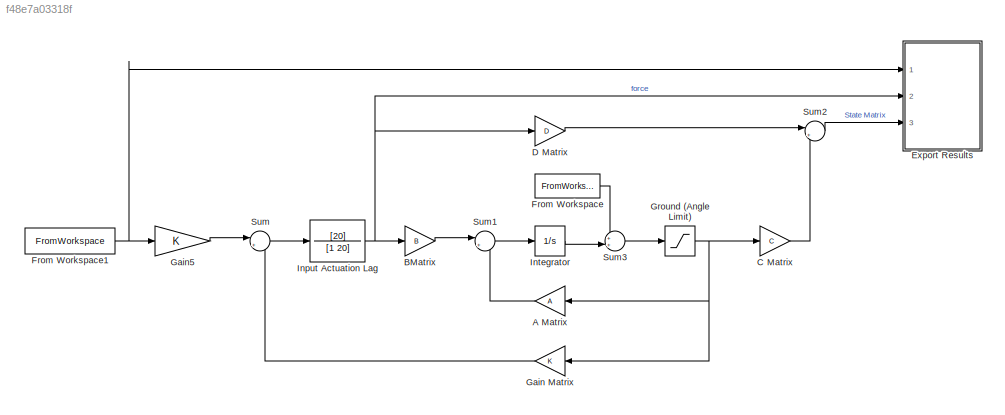
MODEL slx_f48e7a03318f
KIND model
CONFIG AbsTol = auto
CONFIG EnableMultiTasking = off
CONFIG FixedStep = .05
CONFIG MaxStep = auto
CONFIG MinStep = auto
CONFIG RelTol = 1e-3
CONFIG SampleTimeConstraint = Unconstrained
CONFIG SolverName = ode4
CONFIG StartTime = 0.0
CONFIG StopTime = 10
BLOCK [Gain] A Matrix
  Gain = A
  Multiplication = Matrix(K*u)
BLOCK [Gain] BMatrix
  Gain = B
  Multiplication = Matrix(K*u)
BLOCK [Gain] C Matrix
  Gain = C
  Multiplication = Matrix(K*u)
BLOCK [Gain] D Matrix
  Gain = D
  Multiplication = Matrix(K*u)
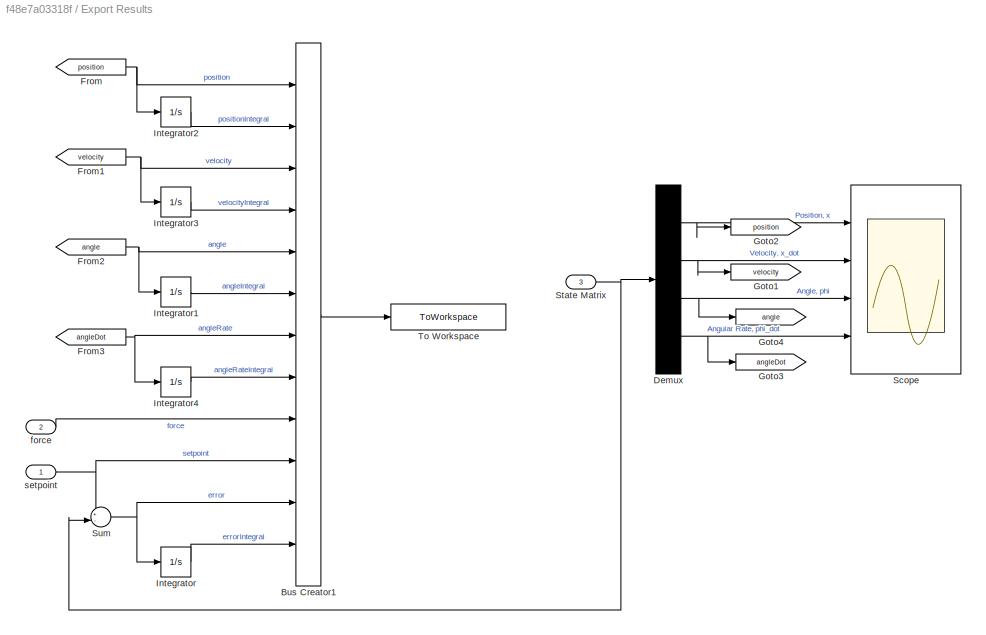
BLOCK [SubSystem] Export Results
  Ports = [3]
  RequestExecContextInheritance = off
BLOCK [BusCreator] Export Results/Bus Creator1
  DisplayOption = bar
  InheritFromInputs = on
  Inputs = 12
  Ports = [12, 1]
BLOCK [Demux] Export Results/Demux
  Ports = [1, 4]
BLOCK [From] Export Results/From
  GotoTag = position
BLOCK [From] Export Results/From1
  GotoTag = velocity
BLOCK [From] Export Results/From2
  GotoTag = angle
BLOCK [From] Export Results/From3
  GotoTag = angleDot
BLOCK [Goto] Export Results/Goto1
  GotoTag = velocity
BLOCK [Goto] Export Results/Goto2
  GotoTag = position
BLOCK [Goto] Export Results/Goto3
  GotoTag = angleDot
BLOCK [Goto] Export Results/Goto4
  GotoTag = angle
BLOCK [Integrator] Export Results/Integrator
  Ports = [1, 1]
BLOCK [Integrator] Export Results/Integrator1
  Ports = [1, 1]
BLOCK [Integrator] Export Results/Integrator2
  Ports = [1, 1]
BLOCK [Integrator] Export Results/Integrator3
  Ports = [1, 1]
BLOCK [Integrator] Export Results/Integrator4
  Ports = [1, 1]
BLOCK [Scope] Export Results/Scope
  Floating = off
  NumInputPorts = 4
  Ports = [4]
  ScopeSpecificationString = Simulink.scopes.TimeScopeBlockCfg('CurrentConfiguration', extmgr.ConfigurationSet(extmgr.Configuration('Core','General UI',true),extmgr.Configuration('Core','Source UI',true),extmgr.Configuration('Sources','WiredSimulink',true),extmgr.Configuration('Visuals','Time Domain',true,'SerializedDisplays',{struct('MinYLimReal','-0.33126','MaxYLimReal','2.78684','YLabelReal','','MinYLimMag','0.00000','MaxY...<+1411ch>
BLOCK [Inport] Export Results/State Matrix
  Port = 3
BLOCK [Sum] Export Results/Sum
  Inputs = +-|
  Ports = [2, 1]
BLOCK [ToWorkspace] Export Results/To Workspace
  FixptAsFi = on
  MaxDataPoints = inf
  Ports = [1]
  SampleTime = -1
  SaveFormat = Timeseries
  VariableName = results
BLOCK [Inport] Export Results/force
  Port = 2
BLOCK [Inport] Export Results/setpoint
BLOCK [FromWorkspace] From Workspace
  VariableName = disturbanceData
BLOCK [FromWorkspace] From Workspace1
  VariableName = systemSetpoints
BLOCK [Gain] Gain Matrix
  Gain = K
  Multiplication = Matrix(K*u)
BLOCK [Gain] Gain5
  Gain = K
  Multiplication = Matrix(K*u)
BLOCK [Saturate] Ground (Angle Limit)
  LowerLimit = -[10^6 10^6 thetaMax 10^6]
  UpperLimit = [10^6 10^6 thetaMax 10^6]
BLOCK [TransferFcn] Input Actuation Lag
  Denominator = [1 20]
  Numerator = [20]
BLOCK [Integrator] Integrator
  InitialCondition = x0
  Ports = [1, 1]
BLOCK [Sum] Sum
  Inputs = |+-
  Ports = [2, 1]
BLOCK [Sum] Sum1
  Inputs = |++
  Ports = [2, 1]
BLOCK [Sum] Sum2
  Inputs = |++
  Ports = [2, 1]
BLOCK [Sum] Sum3
  Inputs = ++|
  Ports = [2, 1]
LINE A Matrix:1 -> Sum1:2
LINE BMatrix:1 -> Sum1:1
LINE C Matrix:1 -> Sum2:2
LINE D Matrix:1 -> Sum2:1
LINE Export Results/Bus Creator1:1 -> Export Results/To Workspace:1
NET Export Results/Demux:1 -> Export Results/Goto2:1, Export Results/Scope:1
NET Export Results/Demux:2 -> Export Results/Goto1:1, Export Results/Scope:2
NET Export Results/Demux:3 -> Export Results/Goto4:1, Export Results/Scope:3
NET Export Results/Demux:4 -> Export Results/Goto3:1, Export Results/Scope:4
NET Export Results/From1:1 -> Export Results/Bus Creator1:3, Export Results/Integrator3:1
NET Export Results/From2:1 -> Export Results/Bus Creator1:5, Export Results/Integrator1:1
NET Export Results/From3:1 -> Export Results/Bus Creator1:7, Export Results/Integrator4:1
NET Export Results/From:1 -> Export Results/Bus Creator1:1, Export Results/Integrator2:1
LINE Export Results/Integrator1:1 -> Export Results/Bus Creator1:6
LINE Export Results/Integrator2:1 -> Export Results/Bus Creator1:2
LINE Export Results/Integrator3:1 -> Export Results/Bus Creator1:4
LINE Export Results/Integrator4:1 -> Export Results/Bus Creator1:8
LINE Export Results/Integrator:1 -> Export Results/Bus Creator1:12
NET Export Results/State Matrix:1 -> Export Results/Demux:1, Export Results/Sum:2
NET Export Results/Sum:1 -> Export Results/Bus Creator1:11, Export Results/Integrator:1
LINE Export Results/force:1 -> Export Results/Bus Creator1:9
NET Export Results/setpoint:1 -> Export Results/Bus Creator1:10, Export Results/Sum:1
NET From Workspace1:1 -> Export Results:1, Gain5:1
LINE From Workspace:1 -> Sum3:1
LINE Gain Matrix:1 -> Sum:2
LINE Gain5:1 -> Sum:1
NET Ground (Angle Limit):1 -> A Matrix:1, C Matrix:1, Gain Matrix:1
NET Input Actuation Lag:1 -> BMatrix:1, D Matrix:1, Export Results:2
LINE Integrator:1 -> Sum3:2
LINE Sum1:1 -> Integrator:1
LINE Sum2:1 -> Export Results:3
LINE Sum3:1 -> Ground (Angle Limit):1
LINE Sum:1 -> Input Actuation Lag:1
note: NET lines group one-source signal fan-out (src -> all destinations, sorted); 1:1 wires keep LINE
